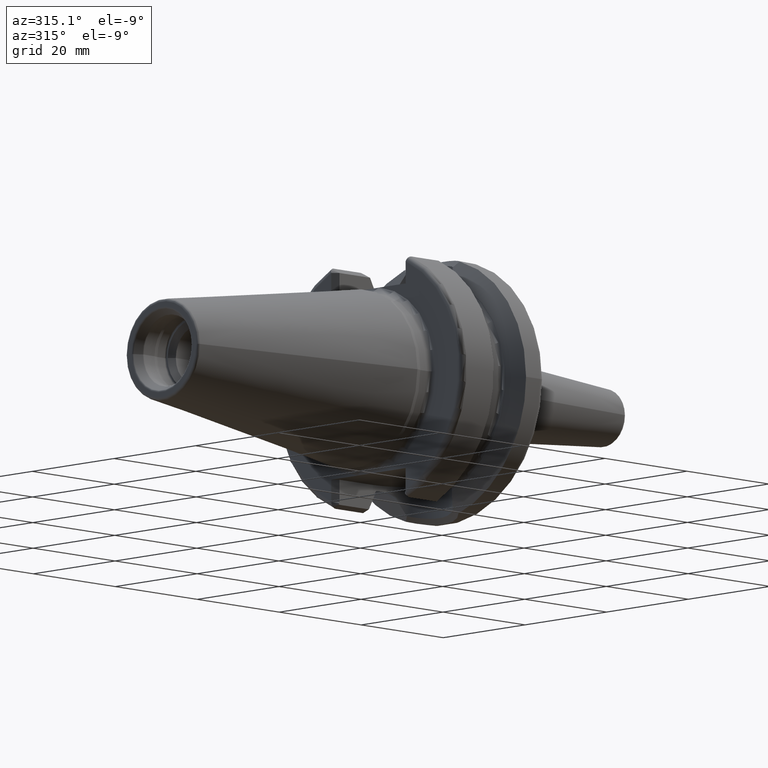
[diagram: clean part render]
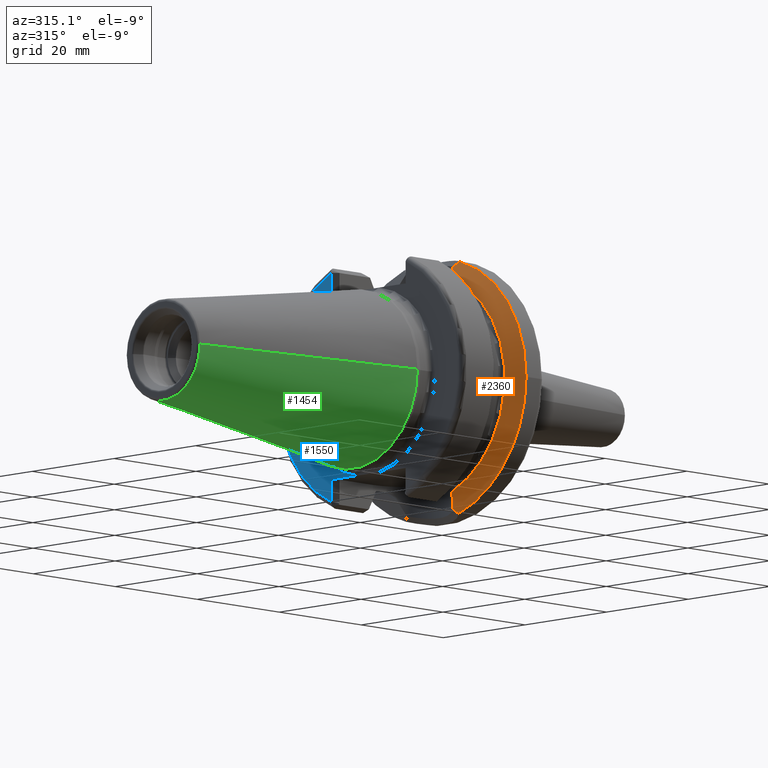
[diagram: same view with three faces highlighted in distinct colors, each labeled with its STEP entity id]
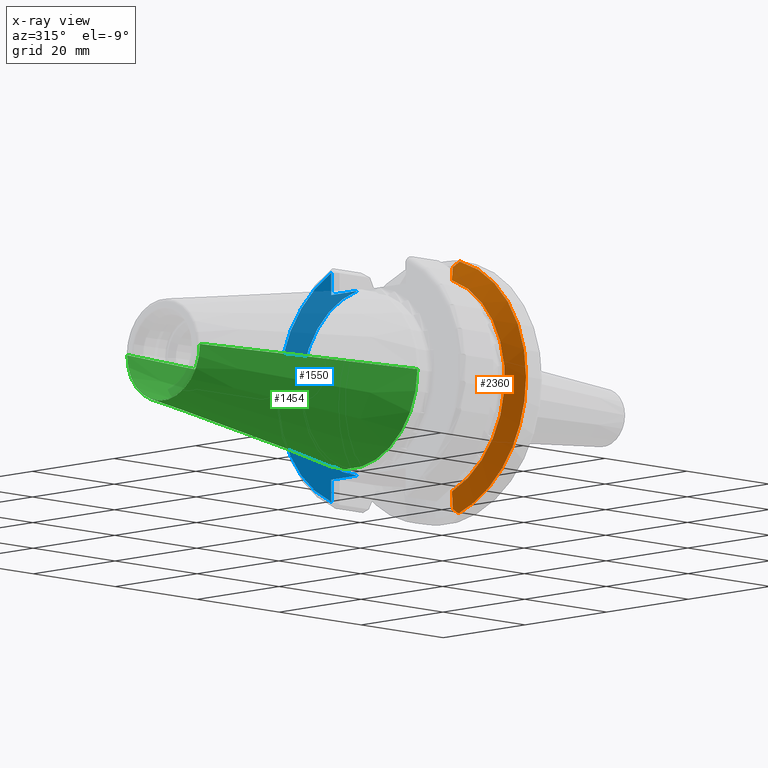
[diagram: x-ray of the same camera — body ghosted, the three highlighted faces saturated]
A machine part, auxiliary view with three faces highlighted in distinct colors.
The next image is the same camera in x-ray (body ghosted, the three faces saturated) — at least one of them is partly hidden behind the body in this view.
Their STEP definitions:

[orange] entity #2360 — the highlighted conical surface has half-angle 60 deg.
#226=CARTESIAN_POINT('',(1.754907584126E1,0.E0,0.E0));
#227=DIRECTION('',(1.E0,0.E0,0.E0));
#228=DIRECTION('',(0.E0,-1.E0,0.E0));
#229=AXIS2_PLACEMENT_3D('',#226,#227,#228);
#301=CARTESIAN_POINT('',(1.698654743284E1,-5.614452737227E0,-2.128773692951E1));
#302=CARTESIAN_POINT('',(1.685107103184E1,-5.755167619944E0,-2.100794867350E1));
#303=CARTESIAN_POINT('',(1.657018228212E1,-6.026536433094E0,-2.042717096589E1));
#304=CARTESIAN_POINT('',(1.612019321532E1,-6.402407747302E0,-1.949400229719E1));
#305=CARTESIAN_POINT('',(1.580140145437E1,-6.631645487516E0,-1.883051788112E1));
#306=CARTESIAN_POINT('',(1.56375E1,-6.740639342822E0,-1.848861619239E1));
#539=CARTESIAN_POINT('',(1.56375E1,-6.740639342822E0,1.848861619239E1));
#540=CARTESIAN_POINT('',(1.585767247034E1,-6.594225471952E0,1.894790033793E1));
#541=CARTESIAN_POINT('',(1.628171976104E1,-6.281140526994E0,1.982974129959E1));
#542=CARTESIAN_POINT('',(1.667161664884E1,-5.929979516978E0,2.063692715611E1));
#543=CARTESIAN_POINT('',(1.685763265114E1,-5.745346451357E0,2.102139504543E1));
#754=CARTESIAN_POINT('',(1.56375E1,0.E0,0.E0));
#755=DIRECTION('',(-1.E0,0.E0,0.E0));
#756=DIRECTION('',(0.E0,-3.425286351209E-1,-9.395073890727E-1));
#757=AXIS2_PLACEMENT_3D('',#754,#755,#756);
#759=CARTESIAN_POINT('',(1.754907584126E1,-6.443032679053E0,-2.206869796560E1));
#760=CARTESIAN_POINT('',(1.748456901312E1,-6.349229342496E0,-2.197969071488E1));
#761=CARTESIAN_POINT('',(1.735689008885E1,-6.162789812709E0,-2.180316770528E1));
#762=CARTESIAN_POINT('',(1.716937022838E1,-5.886595386436E0,-2.154283832910E1));
#763=CARTESIAN_POINT('',(1.704704179076E1,-5.704784930306E0,-2.137227484606E1));
#764=CARTESIAN_POINT('',(1.698654743284E1,-5.614452737227E0,-2.128773692951E1));
#783=CARTESIAN_POINT('',(1.754907584126E1,0.E0,0.E0));
#784=DIRECTION('',(1.E0,0.E0,0.E0));
#785=DIRECTION('',(0.E0,-2.941213407634E-1,9.557680874080E-1));
#786=AXIS2_PLACEMENT_3D('',#783,#784,#785);
#925=CARTESIAN_POINT('',(1.685763265114E1,-5.745346451357E0,2.102139504543E1));
#926=CARTESIAN_POINT('',(1.693144167990E1,-5.855715160872E0,2.112375997325E1));
#927=CARTESIAN_POINT('',(1.708107453051E1,-6.078150083564E0,2.133074220340E1));
#928=CARTESIAN_POINT('',(1.731157671337E1,-6.416980815637E0,2.164800022547E1));
#929=CARTESIAN_POINT('',(1.746924261241E1,-6.646311278969E0,2.186398885076E1));
#930=CARTESIAN_POINT('',(1.754907584126E1,-6.761849624151E0,2.197310832951E1));
#1182=CARTESIAN_POINT('',(1.56375E1,-6.740639342822E0,-1.848861619239E1));
#1183=CARTESIAN_POINT('',(1.56375E1,-6.740639342822E0,1.848861619239E1));
#1184=VERTEX_POINT('',#1182);
#1185=VERTEX_POINT('',#1183);
#1198=CARTESIAN_POINT('',(1.754907584126E1,-2.299E1,0.E0));
#1199=CARTESIAN_POINT('',(1.754907584126E1,-6.443032679053E0,
-2.206869796560E1));
#1200=VERTEX_POINT('',#1198);
#1201=VERTEX_POINT('',#1199);
#1206=CARTESIAN_POINT('',(1.754907584126E1,-6.761849624151E0,2.197310832951E1));
#1207=VERTEX_POINT('',#1206);
#1296=VERTEX_POINT('',#543);
#1302=VERTEX_POINT('',#301);
#2343=CARTESIAN_POINT('',(1.659328792063E1,0.E0,0.E0));
#2344=DIRECTION('',(1.E0,0.E0,0.E0));
#2345=DIRECTION('',(0.E0,-1.E0,0.E0));
#2346=AXIS2_PLACEMENT_3D('',#2343,#2344,#2345);
#2347=CONICAL_SURFACE('',#2346,2.133452676021E1,6.E1);
#2349=ORIENTED_EDGE('',*,*,#2348,.T.);
#2350=ORIENTED_EDGE('',*,*,#1688,.T.);
#2352=ORIENTED_EDGE('',*,*,#2351,.T.);
#2353=ORIENTED_EDGE('',*,*,#1742,.T.);
#2354=ORIENTED_EDGE('',*,*,#1799,.T.);
#2355=ORIENTED_EDGE('',*,*,#1940,.T.);
#2357=ORIENTED_EDGE('',*,*,#2356,.T.);
#2358=EDGE_LOOP('',(#2349,#2350,#2352,#2353,#2354,#2355,#2357));
#2359=FACE_OUTER_BOUND('',#2358,.F.);
#2360=ADVANCED_FACE('',(#2359),#2347,.T.);
#230=CIRCLE('',#229,2.299E1);
#307=B_SPLINE_CURVE_WITH_KNOTS('',3,(#301,#302,#303,#304,#305,#306),
.UNSPECIFIED.,.F.,.F.,(4,1,1,4),(0.E0,3.333333333333E-1,6.666666666667E-1,1.E0),
.UNSPECIFIED.);
#544=B_SPLINE_CURVE_WITH_KNOTS('',3,(#539,#540,#541,#542,#543),.UNSPECIFIED.,
.F.,.F.,(4,1,4),(0.E0,5.E-1,1.E0),.UNSPECIFIED.);
#758=CIRCLE('',#757,1.967905352042E1);
#765=B_SPLINE_CURVE_WITH_KNOTS('',3,(#759,#760,#761,#762,#763,#764),
.UNSPECIFIED.,.F.,.F.,(4,1,1,4),(0.E0,3.333333333333E-1,6.666666666667E-1,1.E0),
.UNSPECIFIED.);
#787=CIRCLE('',#786,2.299E1);
#931=B_SPLINE_CURVE_WITH_KNOTS('',3,(#925,#926,#927,#928,#929,#930),
.UNSPECIFIED.,.F.,.F.,(4,1,1,4),(0.E0,3.333333333333E-1,6.666666666667E-1,1.E0),
.UNSPECIFIED.);
#1688=EDGE_CURVE('',#1200,#1201,#230,.T.);
#1742=EDGE_CURVE('',#1302,#1184,#307,.T.);
#1799=EDGE_CURVE('',#1184,#1185,#758,.T.);
#1940=EDGE_CURVE('',#1185,#1296,#544,.T.);
#2348=EDGE_CURVE('',#1207,#1200,#787,.T.);
#2351=EDGE_CURVE('',#1201,#1302,#765,.T.);
#2356=EDGE_CURVE('',#1296,#1207,#931,.T.);

[blue] entity #1550 — the highlighted planar face has unit normal (1, 0, 0).
#96=CARTESIAN_POINT('',(2.E0,0.E0,0.E0));
#97=DIRECTION('',(-1.E0,0.E0,0.E0));
#98=DIRECTION('',(0.E0,1.E0,0.E0));
#99=AXIS2_PLACEMENT_3D('',#96,#97,#98);
#127=DIRECTION('',(4.744939476517E-6,4.745345851296E-6,9.999999999775E-1));
#128=VECTOR('',#127,3.871014232028E0);
#129=CARTESIAN_POINT('',(1.999981632272E0,9.094981630699E0,-2.002101423194E1));
#130=LINE('',#129,#128);
#131=DIRECTION('',(-7.287242154960E-6,-7.289057609279E-6,9.999999999469E-1));
#132=VECTOR('',#131,3.871026254550E0);
#133=CARTESIAN_POINT('',(2.E0,9.095E0,1.615E1));
#134=LINE('',#133,#132);
#598=CARTESIAN_POINT('',(2.E0,0.E0,0.E0));
#599=DIRECTION('',(-1.E0,0.E0,0.E0));
#600=DIRECTION('',(0.E0,4.135972556779E-1,9.104599442566E-1));
#601=AXIS2_PLACEMENT_3D('',#598,#599,#600);
#674=DIRECTION('',(0.E0,1.E0,0.E0));
#675=VECTOR('',#674,6.389796680469E0);
#676=CARTESIAN_POINT('',(2.E0,2.705203319531E0,1.615E1));
#677=LINE('',#676,#675);
#695=CARTESIAN_POINT('',(2.E0,0.E0,0.E0));
#696=DIRECTION('',(1.E0,0.E0,0.E0));
#697=DIRECTION('',(0.E0,1.E0,0.E0));
#698=AXIS2_PLACEMENT_3D('',#695,#696,#697);
#732=DIRECTION('',(0.E0,-1.E0,0.E0));
#733=VECTOR('',#732,6.389796680469E0);
#734=CARTESIAN_POINT('',(2.E0,9.095E0,-1.615E1));
#735=LINE('',#734,#733);
#1210=CARTESIAN_POINT('',(2.E0,1.6375E1,0.E0));
#1212=VERTEX_POINT('',#1210);
#1280=CARTESIAN_POINT('',(2.E0,2.705203319531E0,1.615E1));
#1281=VERTEX_POINT('',#1280);
#1288=CARTESIAN_POINT('',(2.E0,2.705203319531E0,-1.615E1));
#1289=VERTEX_POINT('',#1288);
#1322=CARTESIAN_POINT('',(2.E0,9.095023821277E0,2.002100501198E1));
#1324=VERTEX_POINT('',#1322);
#1326=CARTESIAN_POINT('',(2.E0,9.095E0,1.615E1));
#1327=VERTEX_POINT('',#1326);
#1336=CARTESIAN_POINT('',(1.999981632272E0,9.094981630699E0,-2.002101423194E1));
#1337=CARTESIAN_POINT('',(2.E0,9.095E0,-1.615E1));
#1338=VERTEX_POINT('',#1336);
#1339=VERTEX_POINT('',#1337);
#1530=CARTESIAN_POINT('',(2.E0,0.E0,0.E0));
#1531=DIRECTION('',(1.E0,0.E0,0.E0));
#1532=DIRECTION('',(0.E0,-1.E0,0.E0));
#1533=AXIS2_PLACEMENT_3D('',#1530,#1531,#1532);
#1534=PLANE('',#1533);
#1536=ORIENTED_EDGE('',*,*,#1535,.F.);
#1538=ORIENTED_EDGE('',*,*,#1537,.F.);
#1540=ORIENTED_EDGE('',*,*,#1539,.F.);
#1542=ORIENTED_EDGE('',*,*,#1541,.F.);
#1544=ORIENTED_EDGE('',*,*,#1543,.F.);
#1545=ORIENTED_EDGE('',*,*,#1516,.T.);
#1547=ORIENTED_EDGE('',*,*,#1546,.F.);
#1548=EDGE_LOOP('',(#1536,#1538,#1540,#1542,#1544,#1545,#1547));
#1549=FACE_OUTER_BOUND('',#1548,.F.);
#1550=ADVANCED_FACE('',(#1549),#1534,.F.);
#100=CIRCLE('',#99,1.6375E1);
#602=CIRCLE('',#601,2.199E1);
#699=CIRCLE('',#698,1.6375E1);
#1516=EDGE_CURVE('',#1212,#1289,#100,.T.);
#1535=EDGE_CURVE('',#1338,#1339,#130,.T.);
#1537=EDGE_CURVE('',#1324,#1338,#602,.T.);
#1539=EDGE_CURVE('',#1327,#1324,#134,.T.);
#1541=EDGE_CURVE('',#1281,#1327,#677,.T.);
#1543=EDGE_CURVE('',#1212,#1281,#699,.T.);
#1546=EDGE_CURVE('',#1339,#1289,#735,.T.);

[green] entity #1454 — the highlighted conical surface has half-angle 8.298 deg.
#32=CARTESIAN_POINT('',(-4.797215933459E1,0.E0,0.E0));
#33=DIRECTION('',(-1.E0,0.E0,0.E0));
#34=DIRECTION('',(0.E0,1.E0,0.E0));
#35=AXIS2_PLACEMENT_3D('',#32,#33,#34);
#47=DIRECTION('',(-9.895312636440E-1,-1.443186691705E-1,0.E0));
#48=VECTOR('',#47,4.683321324594E1);
#49=CARTESIAN_POINT('',(-1.629230650827E0,1.563738406209E1,0.E0));
#50=LINE('',#49,#48);
#51=DIRECTION('',(-9.895312636440E-1,1.443186691705E-1,0.E0));
#52=VECTOR('',#51,4.683321324594E1);
#53=CARTESIAN_POINT('',(-1.629230650827E0,-1.563738406209E1,0.E0));
#54=LINE('',#53,#52);
#55=CARTESIAN_POINT('',(-1.629230650827E0,0.E0,0.E0));
#56=DIRECTION('',(-1.E0,0.E0,0.E0));
#57=DIRECTION('',(0.E0,1.E0,0.E0));
#58=AXIS2_PLACEMENT_3D('',#55,#56,#57);
#1138=CARTESIAN_POINT('',(-4.797215933459E1,8.878477053461E0,0.E0));
#1140=VERTEX_POINT('',#1138);
#1142=CARTESIAN_POINT('',(-4.797215933459E1,-8.878477053461E0,0.E0));
#1144=VERTEX_POINT('',#1142);
#1353=CARTESIAN_POINT('',(-1.629230650827E0,1.563738406209E1,0.E0));
#1354=VERTEX_POINT('',#1353);
#1355=CARTESIAN_POINT('',(-1.629230650827E0,-1.563738406209E1,0.E0));
#1356=VERTEX_POINT('',#1355);
#1442=CARTESIAN_POINT('',(-2.480069499271E1,0.E0,0.E0));
#1443=DIRECTION('',(1.E0,0.E0,0.E0));
#1444=DIRECTION('',(0.E0,-1.E0,0.E0));
#1445=AXIS2_PLACEMENT_3D('',#1442,#1443,#1444);
#1446=CONICAL_SURFACE('',#1445,1.225793055778E1,8.297826828206E0);
#1447=ORIENTED_EDGE('',*,*,#1432,.T.);
#1448=ORIENTED_EDGE('',*,*,#1409,.T.);
#1449=ORIENTED_EDGE('',*,*,#1436,.F.);
#1451=ORIENTED_EDGE('',*,*,#1450,.F.);
#1452=EDGE_LOOP('',(#1447,#1448,#1449,#1451));
#1453=FACE_OUTER_BOUND('',#1452,.F.);
#1454=ADVANCED_FACE('',(#1453),#1446,.T.);
#36=CIRCLE('',#35,8.878477053461E0);
#59=CIRCLE('',#58,1.563738406209E1);
#1409=EDGE_CURVE('',#1140,#1144,#36,.T.);
#1432=EDGE_CURVE('',#1354,#1140,#50,.T.);
#1436=EDGE_CURVE('',#1356,#1144,#54,.T.);
#1450=EDGE_CURVE('',#1354,#1356,#59,.T.);